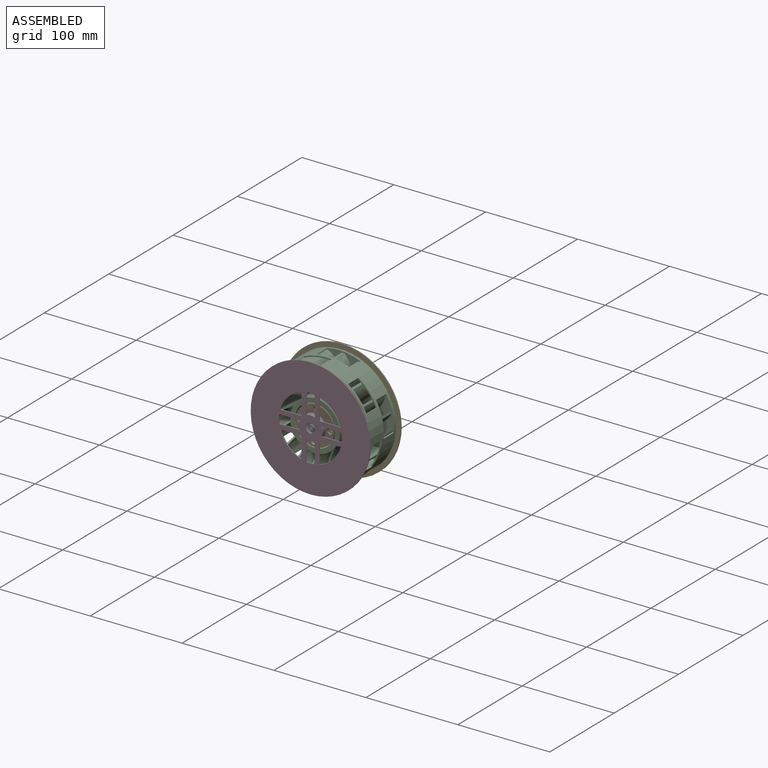
[diagram: assembled view]
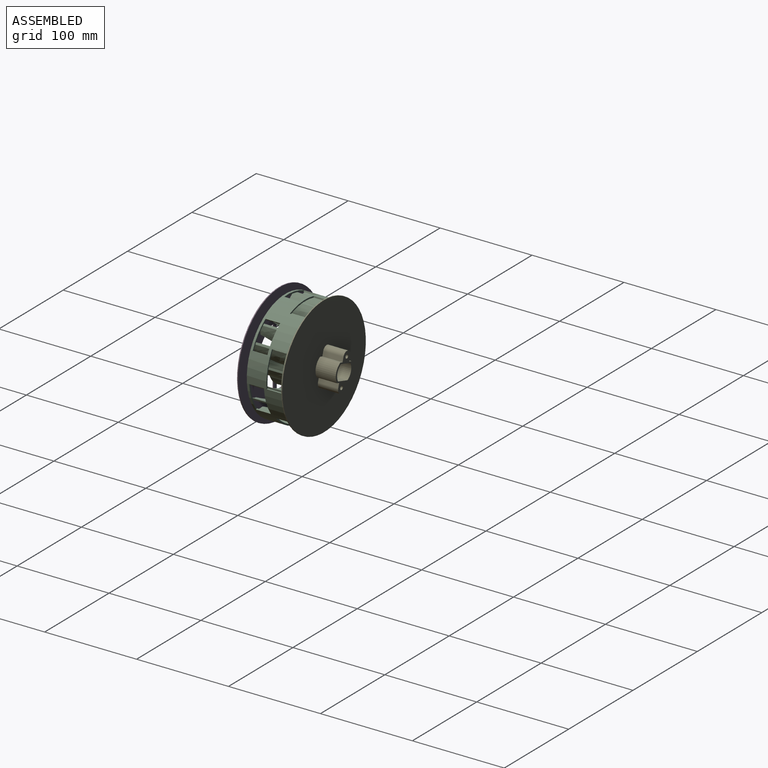
[diagram: assembled view, second angle]
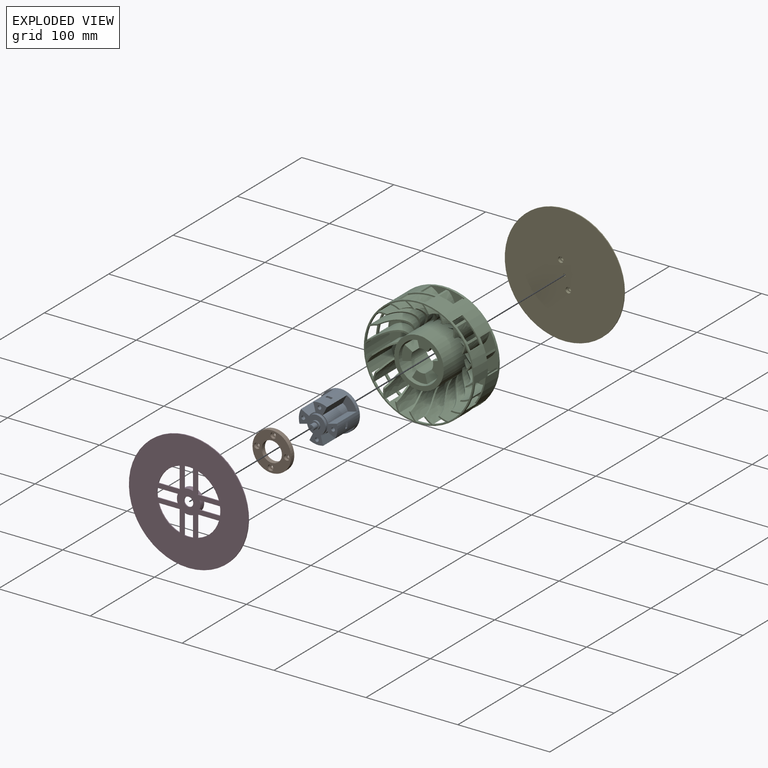
[diagram: exploded view]
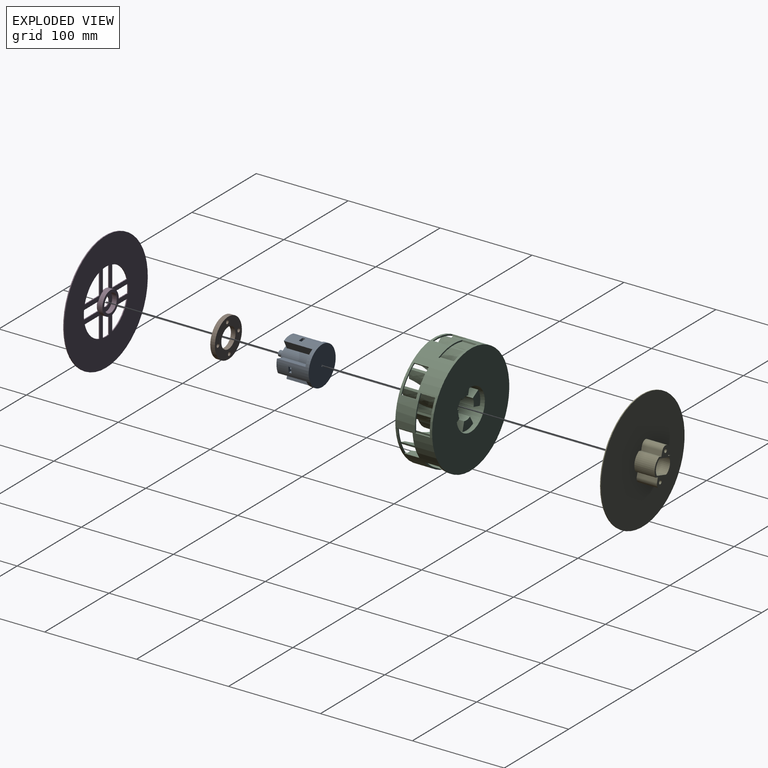
[diagram: exploded view, second angle]
ASSEMBLY  parts=5 mates=4
PART A: 62 faces, bbox 42x46x42 mm
  f0: cylinder r=2mm len=12mm, axis (0,-1,0), area 150.8mm2, adj f1,f7
  f1: plane 8.21x6mm, normal (0,-1,0), area 31.1mm2, adj f0,f3,f4,f5,f6,f27
  f2: plane 8.21x6mm, normal (0,1,0), area 31.1mm2, adj f3,f4,f5,f6,f8,f27
  f3: plane 6.26x3mm, normal (0,0,1), area 18.8mm2, adj f1,f2,f4,f27
  f4: plane 3x3mm, normal (-0.87,0,0.5), area 10.4mm2, adj f1,f2,f3,f5
  f5: plane 3x3mm, normal (-0.87,0,-0.5), area 10.4mm2, adj f1,f2,f4,f6
  f6: plane 6.26x3mm, normal (0,0,-1), area 18.8mm2, adj f1,f2,f5,f27
  f7: plane 4x4mm, normal (0,-1,0), area 12.6mm2, adj f0
  f8: cylinder r=2mm len=13mm, axis (0,-1,0), area 163.4mm2, adj f2,f40
  f9: cylinder r=2mm len=12mm, axis (0,-1,0), area 150.8mm2, adj f10,f16
  f10: plane 8.21x6mm, normal (0,-1,0), area 31.1mm2, adj f9,f12,f13,f14,f15,f27
  f11: plane 8.21x6mm, normal (0,1,0), area 31.1mm2, adj f12,f13,f14,f15,f17,f27
  f12: plane 6.26x3mm, normal (-1,0,0), area 18.8mm2, adj f10,f11,f13,f27
  f13: plane 3x3mm, normal (-0.5,0,-0.87), area 10.4mm2, adj f10,f11,f12,f14
  f14: plane 3x3mm, normal (0.5,0,-0.87), area 10.4mm2, adj f10,f11,f13,f15
  f15: plane 6.26x3mm, normal (1,0,0), area 18.8mm2, adj f10,f11,f14,f27
  f16: plane 4x4mm, normal (0,-1,0), area 12.6mm2, adj f9
  f17: cylinder r=2mm len=13mm, axis (0,-1,0), area 163.4mm2, adj f11,f40
  f18: cylinder r=2mm len=12mm, axis (0,-1,0), area 150.8mm2, adj f19,f25
  f19: plane 8.21x6mm, normal (0,-1,0), area 31.1mm2, adj f18,f21,f22,f23,f24,f27
  f20: plane 8.21x6mm, normal (0,1,0), area 31.1mm2, adj f21,f22,f23,f24,f26,f27
  f21: plane 6.26x3mm, normal (0,0,-1), area 18.8mm2, adj f19,f20,f22,f27
  f22: plane 3x3mm, normal (0.87,0,-0.5), area 10.4mm2, adj f19,f20,f21,f23
  f23: plane 3x3mm, normal (0.87,0,0.5), area 10.4mm2, adj f19,f20,f22,f24
  f24: plane 6.26x3mm, normal (0,0,1), area 18.8mm2, adj f19,f20,f23,f27
  f25: plane 4x4mm, normal (0,-1,0), area 12.6mm2, adj f18
  f26: cylinder r=2mm len=13mm, axis (0,-1,0), area 163.4mm2, adj f20,f40
  f27: cylinder r=21mm len=42mm, axis (0,-1,0), area 2364.4mm2, adj f1,f2,f3,f6,f10,f11,f12,f15
  f28: cylinder r=11mm len=31mm, axis (0,-1,0), area 285.7mm2, adj f29,f33,f40,f52
  f29: plane 31x9.4mm, normal (0.34,0,-0.94), area 310mm2, adj f27,f28,f40,f52
  f30: plane 31x9.27mm, normal (0.37,0,0.93), area 310mm2, adj f27,f37,f40,f49
  f31: cylinder r=11mm len=31mm, axis (0,-1,0), area 285.7mm2, adj f32,f36,f40,f51
  f32: plane 31x9.4mm, normal (0.94,0,0.34), area 310mm2, adj f27,f31,f40,f51
  f33: plane 31x9.27mm, normal (-0.93,0,0.37), area 310mm2, adj f27,f28,f40,f52
  f34: cylinder r=11mm len=31mm, axis (0,-1,0), area 285.7mm2, adj f35,f38,f40,f50
  f35: plane 31x9.4mm, normal (-0.34,0,0.94), area 310mm2, adj f27,f34,f40,f50
  f36: plane 31x9.27mm, normal (-0.37,0,-0.93), area 310mm2, adj f27,f31,f40,f51
  f37: cylinder r=11mm len=31mm, axis (0,-1,0), area 285.7mm2, adj f30,f39,f40,f49
  f38: plane 31x9.27mm, normal (0.93,0,-0.37), area 310mm2, adj f27,f34,f40,f50
  f39: plane 31x9.4mm, normal (-0.94,0,-0.34), area 310mm2, adj f27,f37,f40,f49
  f40: plane 42x42mm, normal (0,-1,0), area 484.9mm2, adj f8,f17,f26,f27,f28,f29,f30,f31
  f41: cylinder r=10mm len=20mm, axis (0,-1,0), area 188.5mm2, adj f40,f42
  f42: plane 20x20mm, normal (0,-1,0), area 250.5mm2, adj f41,f43
  f43: cylinder r=4.5mm len=9mm, axis (0,-1,0), area 56.5mm2, adj f42,f44
  f44: plane 9x9mm, normal (0,-1,0), area 35.3mm2, adj f43,f45
  f45: cylinder r=3mm len=6mm, axis (0,-1,0), area 113.1mm2, adj f44,f46
  f46: plane 6x6mm, normal (0,-1,0), area 25.1mm2, adj f45,f47
  f47: cylinder r=1mm len=46mm, axis (0,-1,0), area 289mm2, adj f46,f48
  f48: plane 42x42mm, normal (0,1,0), area 1382.3mm2, adj f27,f47
  f49: plane 15.71x15.61mm, normal (0,-1,0), area 134mm2, adj f27,f30,f37,f39
  f50: plane 15.71x15.61mm, normal (0,-1,0), area 134mm2, adj f27,f34,f35,f38
  f51: plane 15.71x15.61mm, normal (0,-1,0), area 134mm2, adj f27,f31,f32,f36
  f52: plane 15.71x15.61mm, normal (0,-1,0), area 134mm2, adj f27,f28,f29,f33
  f53: cylinder r=2mm len=13mm, axis (0,-1,0), area 163.4mm2, adj f40,f55
  f54: plane 8.21x6mm, normal (0,-1,0), area 31.1mm2, adj f27,f56,f57,f58,f59,f61
  f55: plane 8.21x6mm, normal (0,1,0), area 31.1mm2, adj f27,f53,f56,f57,f58,f59
  f56: plane 3x3mm, normal (0.5,0,0.87), area 10.4mm2, adj f54,f55,f57,f59
  f57: plane 3x3mm, normal (-0.5,0,0.87), area 10.4mm2, adj f54,f55,f56,f58
  f58: plane 6.26x3mm, normal (-1,0,0), area 18.8mm2, adj f27,f54,f55,f57
  f59: plane 6.26x3mm, normal (1,0,0), area 18.8mm2, adj f27,f54,f55,f56
  f60: plane 4x4mm, normal (0,-1,0), area 12.6mm2, adj f61
  f61: cylinder r=2mm len=12mm, axis (0,-1,0), area 150.8mm2, adj f54,f60
PART B: 16 faces, bbox 42x5x42 mm
  f0: cylinder r=2mm len=4mm, axis (0,-1,0), area 25.1mm2, adj f2,f10
  f1: cylinder r=3mm len=6mm, axis (0,-1,0), area 56.5mm2, adj f2,f9
  f2: plane 6x6mm, normal (0,-1,0), area 15.7mm2, adj f0,f1
  f3: cylinder r=2mm len=4mm, axis (0,-1,0), area 25.1mm2, adj f5,f10
  f4: cylinder r=3mm len=6mm, axis (0,-1,0), area 56.5mm2, adj f5,f9
  f5: plane 6x6mm, normal (0,-1,0), area 15.7mm2, adj f3,f4
  f6: cylinder r=2mm len=4mm, axis (0,-1,0), area 25.1mm2, adj f8,f10
  f7: cylinder r=3mm len=6mm, axis (0,-1,0), area 56.5mm2, adj f8,f9
  f8: plane 6x6mm, normal (0,-1,0), area 15.7mm2, adj f6,f7
  f9: plane 42x42mm, normal (0,-1,0), area 892.2mm2, adj f1,f4,f7,f11,f12,f13
  f10: plane 42x42mm, normal (0,1,0), area 955mm2, adj f0,f3,f6,f11,f12,f15
  f11: cylinder r=21mm len=42mm, axis (0,-1,0), area 659.7mm2, adj f9,f10
  f12: cylinder r=11mm len=22mm, axis (0,-1,0), area 345.6mm2, adj f9,f10
  f13: cylinder r=3mm len=6mm, axis (0,-1,0), area 56.5mm2, adj f9,f14
  f14: plane 6x6mm, normal (0,-1,0), area 15.7mm2, adj f13,f15
  f15: cylinder r=2mm len=4mm, axis (0,-1,0), area 25.1mm2, adj f10,f14
PART C: 194 faces, bbox 120x40x120 mm
  f0: cylinder r=58.5mm len=15.9mm, axis (0,1,0), area 40.3mm2, adj f73,f81,f124,f126
  f1: cylinder r=58.5mm len=19.5mm, axis (0,1,0), area 314.1mm2, adj f82,f124,f126,f184
  f2: cylinder r=58.5mm len=21.5mm, axis (0,1,0), area 346.4mm2, adj f73,f77,f123,f183
  f3: cylinder r=58.5mm len=38mm, axis (0,1,0), area 419.8mm2, adj f73,f80,f81,f82,f127,f129,f184
  f4: cylinder r=58.5mm len=15.82mm, axis (0,1,0), area 8.1mm2, adj f78,f123,f183,f184
  f5: cylinder r=58.5mm len=21.5mm, axis (0,1,0), area 346.4mm2, adj f59,f73,f130,f132
  f6: cylinder r=58.5mm len=11.53mm, axis (0,1,0), area 8.1mm2, adj f58,f130,f132,f184
  f7: cylinder r=58.5mm len=21.5mm, axis (0,1,0), area 183mm2, adj f36,f38,f39,f59,f73,f133,f135
  f8: cylinder r=58.5mm len=14.19mm, axis (0,1,0), area 8.1mm2, adj f58,f133,f135,f184
  f9: cylinder r=58.5mm len=15.82mm, axis (0,1,0), area 40.3mm2, adj f39,f73,f136,f139
  f10: cylinder r=58.5mm len=19.5mm, axis (0,1,0), area 314.1mm2, adj f38,f136,f139,f184
  f11: cylinder r=58.5mm len=38mm, axis (0,1,0), area 612.2mm2, adj f73,f140,f142,f184
  f12: cylinder r=58.5mm len=21.5mm, axis (0,1,0), area 281mm2, adj f40,f42,f43,f63,f73,f143,f145
  f13: cylinder r=58.5mm len=14.42mm, axis (0,1,0), area 8.1mm2, adj f62,f143,f145,f184
  f14: cylinder r=58.5mm len=11.53mm, axis (0,1,0), area 40.3mm2, adj f43,f73,f146,f148
  f15: cylinder r=58.5mm len=11.53mm, axis (0,1,0), area 48.3mm2, adj f42,f63,f146,f148
  f16: cylinder r=58.5mm len=11.53mm, axis (0,1,0), area 8.1mm2, adj f62,f146,f148,f184
  f17: cylinder r=58.5mm len=38mm, axis (0,1,0), area 517.8mm2, adj f41,f42,f43,f73,f149,f151,f184
  f18: cylinder r=58.5mm len=38mm, axis (0,1,0), area 612.2mm2, adj f73,f152,f155,f184
  f19: cylinder r=58.5mm len=15.9mm, axis (0,1,0), area 40.3mm2, adj f47,f73,f156,f158
  f20: cylinder r=58.5mm len=15.9mm, axis (0,1,0), area 48.3mm2, adj f46,f67,f156,f158
  f21: cylinder r=58.5mm len=15.9mm, axis (0,1,0), area 8.1mm2, adj f66,f156,f158,f184
  f22: cylinder r=58.5mm len=21.5mm, axis (0,1,0), area 153.9mm2, adj f45,f46,f47,f67,f73,f159,f161
  f23: cylinder r=58.5mm len=14.42mm, axis (0,1,0), area 8.1mm2, adj f66,f159,f161,f184
  f24: cylinder r=58.5mm len=38mm, axis (0,1,0), area 612.2mm2, adj f73,f162,f164,f184
  f25: cylinder r=58.5mm len=38mm, axis (0,1,0), area 448.8mm2, adj f48,f50,f51,f73,f165,f167,f184
  f26: cylinder r=58.5mm len=15.82mm, axis (0,1,0), area 40.3mm2, adj f51,f73,f168,f171
  f27: cylinder r=58.5mm len=15.82mm, axis (0,1,0), area 48.3mm2, adj f50,f71,f168,f171
  f28: cylinder r=58.5mm len=15.82mm, axis (0,1,0), area 8.1mm2, adj f70,f168,f171,f184
  f29: cylinder r=58.5mm len=21.5mm, axis (0,1,0), area 346.4mm2, adj f71,f73,f172,f174
  f30: cylinder r=58.5mm len=15.9mm, axis (0,1,0), area 8.1mm2, adj f70,f172,f174,f184
  f31: cylinder r=58.5mm len=38mm, axis (0,1,0), area 546.8mm2, adj f52,f54,f55,f73,f175,f177,f184
  f32: cylinder r=58.5mm len=11.53mm, axis (0,1,0), area 40.3mm2, adj f55,f73,f178,f180
  f33: cylinder r=58.5mm len=19.5mm, axis (0,1,0), area 314.1mm2, adj f54,f178,f180,f184
  f34: cylinder r=58.5mm len=21.5mm, axis (0,1,0), area 252mm2, adj f53,f54,f55,f73,f77,f181,f182
  f35: cylinder r=58.5mm len=14.19mm, axis (0,1,0), area 8.1mm2, adj f78,f181,f182,f184
  f36: plane 16x1.3mm, normal (0.5,0,-0.87), area 24mm2, adj f7,f38,f39,f72
  f37: plane 16x1.5mm, normal (0,0,1), area 24mm2, adj f38,f39,f72,f138
  f38: plane 30x9.34mm, normal (0,-1,0), area 46.5mm2, adj f7,f10,f36,f37,f72,f85,f138
  f39: plane 30x9.34mm, normal (0,1,0), area 46.5mm2, adj f7,f9,f36,f37,f72,f85,f138
  f40: plane 16x1.3mm, normal (-0.5,0,-0.87), area 24mm2, adj f12,f42,f43,f72
  f41: plane 16x1.3mm, normal (0.87,0,0.5), area 24mm2, adj f17,f42,f43,f72
  f42: plane 22.71x22.71mm, normal (0,-1,0), area 46.5mm2, adj f12,f15,f17,f40,f41,f72,f88,f90
  f43: plane 22.71x22.71mm, normal (0,1,0), area 46.5mm2, adj f12,f14,f17,f40,f41,f72,f88,f90
  f44: plane 16x1.5mm, normal (-1,0,0), area 24mm2, adj f46,f47,f72,f154
  f45: plane 16x1.3mm, normal (0.87,0,-0.5), area 24mm2, adj f22,f46,f47,f72
  f46: plane 30x9.34mm, normal (0,-1,0), area 46.5mm2, adj f20,f22,f44,f45,f72,f93,f154
  f47: plane 30x9.34mm, normal (0,1,0), area 46.5mm2, adj f19,f22,f44,f45,f72,f93,f154
  f48: plane 16x1.3mm, normal (-0.5,0,0.87), area 24mm2, adj f25,f50,f51,f72
  f49: plane 16x1.5mm, normal (0,0,-1), area 24mm2, adj f50,f51,f72,f170
  f50: plane 30x9.34mm, normal (0,-1,0), area 46.5mm2, adj f25,f27,f48,f49,f72,f96,f170
  f51: plane 30x9.34mm, normal (0,1,0), area 46.5mm2, adj f25,f26,f48,f49,f72,f96,f170
  f52: plane 16x1.3mm, normal (0.5,0,0.87), area 24mm2, adj f31,f54,f55,f72
  f53: plane 16x1.3mm, normal (-0.87,0,-0.5), area 24mm2, adj f34,f54,f55,f72
  f54: plane 22.71x22.71mm, normal (0,-1,0), area 46.5mm2, adj f31,f33,f34,f52,f53,f72,f100,f101
  f55: plane 22.71x22.71mm, normal (0,1,0), area 46.5mm2, adj f31,f32,f34,f52,f53,f72,f100,f101
  f56: plane 16x1.21mm, normal (0.81,0,-0.59), area 24mm2, adj f58,f59,f72,f83
  f57: plane 16x1.43mm, normal (-0.31,0,0.95), area 24mm2, adj f58,f59,f72,f86
  f58: plane 30.46x22.68mm, normal (0,-1,0), area 55.8mm2, adj f6,f8,f56,f57,f72,f83,f84,f86
  f59: plane 30.46x22.68mm, normal (0,1,0), area 55.8mm2, adj f5,f7,f56,f57,f72,f83,f84,f86
  f60: plane 16x1.43mm, normal (-0.31,0,-0.95), area 24mm2, adj f62,f63,f72,f87
  f61: plane 16x1.21mm, normal (0.81,0,0.59), area 24mm2, adj f62,f63,f72,f91
  f62: plane 30.46x22.68mm, normal (0,-1,0), area 55.8mm2, adj f13,f16,f60,f61,f72,f87,f89,f91
  f63: plane 30.46x22.68mm, normal (0,1,0), area 55.8mm2, adj f12,f15,f60,f61,f72,f87,f89,f91
  f64: plane 16x1.5mm, normal (-1,0,0), area 24mm2, adj f66,f67,f72,f92
  f65: plane 16x1.21mm, normal (0.81,0,-0.59), area 24mm2, adj f66,f67,f72,f95
  f66: plane 35.27x12.67mm, normal (0,-1,0), area 55.8mm2, adj f21,f23,f64,f65,f72,f92,f94,f95
  f67: plane 35.27x12.67mm, normal (0,1,0), area 55.8mm2, adj f20,f22,f64,f65,f72,f92,f94,f95
  f68: plane 16x1.43mm, normal (-0.31,0,0.95), area 24mm2, adj f70,f71,f72,f97
  f69: plane 16x1.43mm, normal (-0.31,0,-0.95), area 24mm2, adj f70,f71,f72,f99
  f70: plane 37.08x4.36mm, normal (0,-1,0), area 55.8mm2, adj f28,f30,f68,f69,f72,f97,f98,f99
  f71: plane 37.08x4.36mm, normal (0,1,0), area 55.8mm2, adj f27,f29,f68,f69,f72,f97,f98,f99
  f72: cylinder r=60mm len=120mm, axis (0,1,0), area 9047.8mm2, adj f36,f37,f38,f39,f40,f41,f42,f43
  f73: plane 120x120mm, normal (0,-1,0), area 857.2mm2, adj f0,f2,f3,f5,f7,f9,f11,f12
  f74: plane 120x120mm, normal (0,1,0), area 9789.2mm2, adj f72,f186
  f75: plane 16x1.21mm, normal (0.81,0,0.59), area 24mm2, adj f72,f77,f78,f102
  f76: plane 16x1.5mm, normal (-1,0,0), area 24mm2, adj f72,f77,f78,f104
  f77: plane 35.27x12.67mm, normal (0,1,0), area 55.8mm2, adj f2,f34,f72,f75,f76,f102,f103,f104
  f78: plane 35.27x12.67mm, normal (0,-1,0), area 55.8mm2, adj f4,f35,f72,f75,f76,f102,f103,f104
  f79: plane 16x1.5mm, normal (1,0,0), area 24mm2, adj f72,f81,f82,f122
  f80: plane 16x1.3mm, normal (-0.87,0,0.5), area 24mm2, adj f3,f72,f81,f82
  f81: plane 30x9.34mm, normal (0,1,0), area 46.5mm2, adj f0,f3,f72,f79,f80,f105,f122
  f82: plane 30x9.34mm, normal (0,-1,0), area 46.5mm2, adj f1,f3,f72,f79,f80,f105,f122
  f83: cylinder r=58.5mm len=16mm, axis (0,1,0), area 3.6mm2, adj f56,f58,f59,f130
  f84: cylinder r=58.5mm len=16mm, axis (0,1,0), area 36.3mm2, adj f58,f59,f132,f133
  f85: cylinder r=58.5mm len=16mm, axis (0,1,0), area 36.3mm2, adj f38,f39,f135,f136
  f86: cylinder r=58.5mm len=16mm, axis (0,1,0), area 32.7mm2, adj f57,f58,f59,f135
  f87: cylinder r=58.5mm len=16mm, axis (0,1,0), area 3.6mm2, adj f60,f62,f63,f143
  f88: cylinder r=58.5mm len=16mm, axis (0,1,0), area 36.3mm2, adj f42,f43,f145,f146
  f89: cylinder r=58.5mm len=16mm, axis (0,1,0), area 36.3mm2, adj f62,f63,f145,f146
  f90: cylinder r=58.5mm len=16mm, axis (0,1,0), area 36.3mm2, adj f42,f43,f148,f149
  f91: cylinder r=58.5mm len=16mm, axis (0,1,0), area 32.7mm2, adj f61,f62,f63,f148
  f92: cylinder r=58.5mm len=16mm, axis (0,1,0), area 3.6mm2, adj f64,f66,f67,f156
  f93: cylinder r=58.5mm len=16mm, axis (0,1,0), area 36.3mm2, adj f46,f47,f158,f159
  f94: cylinder r=58.5mm len=16mm, axis (0,1,0), area 36.3mm2, adj f66,f67,f158,f159
  f95: cylinder r=58.5mm len=16mm, axis (0,1,0), area 32.7mm2, adj f65,f66,f67,f161
  f96: cylinder r=58.5mm len=16mm, axis (0,1,0), area 36.3mm2, adj f50,f51,f167,f168
  f97: cylinder r=58.5mm len=16mm, axis (0,1,0), area 3.6mm2, adj f68,f70,f71,f168
  f98: cylinder r=58.5mm len=16mm, axis (0,1,0), area 36.3mm2, adj f70,f71,f171,f172
  f99: cylinder r=58.5mm len=16mm, axis (0,1,0), area 32.7mm2, adj f69,f70,f71,f174
  f100: cylinder r=58.5mm len=16mm, axis (0,1,0), area 36.3mm2, adj f54,f55,f177,f178
  f101: cylinder r=58.5mm len=16mm, axis (0,1,0), area 36.3mm2, adj f54,f55,f180,f181
  f102: cylinder r=58.5mm len=16mm, axis (0,1,0), area 3.6mm2, adj f75,f77,f78,f181
  f103: cylinder r=58.5mm len=16mm, axis (0,1,0), area 36.3mm2, adj f77,f78,f182,f183
  f104: cylinder r=58.5mm len=16mm, axis (0,1,0), area 32.7mm2, adj f76,f77,f78,f123
  f105: cylinder r=58.5mm len=16mm, axis (0,1,0), area 36.3mm2, adj f81,f82,f126,f127
  f106: cylinder r=12mm len=30mm, axis (0,1,0), area 282.7mm2, adj f107,f108,f109,f110
  f107: plane 30x9.06mm, normal (0.42,0,0.91), area 300mm2, adj f106,f109,f110,f186
  f108: plane 30x9.4mm, normal (0.34,0,-0.94), area 300mm2, adj f106,f109,f110,f186
  f109: plane 16.82x11.12mm, normal (0,1,0), area 133.5mm2, adj f106,f107,f108,f186
  f110: plane 16.82x11.12mm, normal (0,-1,0), area 133.5mm2, adj f106,f107,f108,f186
  f111: cylinder r=12mm len=30mm, axis (0,1,0), area 282.7mm2, adj f112,f113,f114,f115
  f112: plane 30x9.06mm, normal (-0.91,0,0.42), area 300mm2, adj f111,f114,f115,f186
  f113: plane 30x9.4mm, normal (0.94,0,0.34), area 300mm2, adj f111,f114,f115,f186
  f114: plane 16.82x11.12mm, normal (0,1,0), area 133.5mm2, adj f111,f112,f113,f186
  f115: plane 16.82x11.12mm, normal (0,-1,0), area 133.5mm2, adj f111,f112,f113,f186
  f116: cylinder r=12mm len=30mm, axis (0,1,0), area 282.7mm2, adj f117,f118,f119,f120
  f117: plane 30x9.06mm, normal (-0.42,0,-0.91), area 300mm2, adj f116,f119,f120,f186
  f118: plane 30x9.4mm, normal (-0.34,0,0.94), area 300mm2, adj f116,f119,f120,f186
  f119: plane 16.82x11.12mm, normal (0,1,0), area 133.5mm2, adj f116,f117,f118,f186
  f120: plane 16.82x11.12mm, normal (0,-1,0), area 133.5mm2, adj f116,f117,f118,f186
  f121: cylinder r=39.65mm len=31mm, axis (-1,0,-0.03), area 73mm2, adj f73,f123,f124
  f122: cylinder r=58.5mm len=16mm, axis (0,1,0), area 3.6mm2, adj f79,f81,f82,f124
  f123: extruded ~38x30.98mm, area 823.3mm2, adj f2,f4,f73,f104,f121,f124,f184
  f124: extruded ~38x31.02mm, area 821.7mm2, adj f0,f1,f73,f121,f122,f123,f184
  f125: cylinder r=39.65mm len=31mm, axis (-0.96,0,0.28), area 73mm2, adj f73,f126,f127
  f126: extruded ~38x29.8mm, area 823.3mm2, adj f0,f1,f73,f105,f125,f127,f184
  f127: extruded ~38x29.19mm, area 821.7mm2, adj f3,f73,f105,f125,f126,f184
  f128: cylinder r=39.65mm len=31mm, axis (-0.83,0,0.56), area 73mm2, adj f73,f129,f130
  f129: extruded ~38x25.88mm, area 823.3mm2, adj f3,f73,f128,f130,f184
  f130: extruded ~38x25.69mm, area 821.7mm2, adj f5,f6,f73,f83,f128,f129,f184
  f131: cylinder r=39.65mm len=31mm, axis (-0.62,0,0.79), area 73mm2, adj f73,f132,f133
  f132: extruded ~38x24.43mm, area 823.3mm2, adj f5,f6,f73,f84,f131,f133,f184
  f133: extruded ~38x25.79mm, area 821.7mm2, adj f7,f8,f73,f84,f131,f132,f184
  f134: cylinder r=39.65mm len=31mm, axis (-0.34,0,0.94), area 73mm2, adj f73,f135,f136
  f135: extruded ~38x29.13mm, area 823.3mm2, adj f7,f8,f73,f85,f86,f134,f136,f184
  f136: extruded ~38x29.87mm, area 821.7mm2, adj f9,f10,f73,f85,f134,f135,f184
  f137: cylinder r=39.65mm len=31mm, axis (-0.03,0,1), area 73mm2, adj f73,f139,f140
  f138: cylinder r=58.5mm len=16mm, axis (0,1,0), area 32.7mm2, adj f37,f38,f39,f139
  f139: extruded ~38x30.98mm, area 823.3mm2, adj f9,f10,f73,f137,f138,f140,f184
  f140: extruded ~38x31.02mm, area 821.7mm2, adj f11,f73,f137,f139,f184
  f141: cylinder r=39.65mm len=31mm, axis (0.28,0,0.96), area 73mm2, adj f73,f142,f143
  f142: extruded ~38x29.8mm, area 823.3mm2, adj f11,f73,f141,f143,f184
  f143: extruded ~38x29.19mm, area 821.7mm2, adj f12,f13,f73,f87,f141,f142,f184
  f144: cylinder r=39.65mm len=31mm, axis (0.56,0,0.83), area 73mm2, adj f73,f145,f146
  f145: extruded ~38x25.88mm, area 823.3mm2, adj f12,f13,f73,f88,f89,f144,f146,f184
  f146: extruded ~38x25.69mm, area 821.7mm2, adj f14,f15,f16,f73,f88,f89,f144,f145
  f147: cylinder r=39.65mm len=31mm, axis (0.79,0,0.62), area 73mm2, adj f73,f148,f149
  f148: extruded ~38x24.43mm, area 823.3mm2, adj f14,f15,f16,f73,f90,f91,f147,f149
  f149: extruded ~38x25.79mm, area 821.7mm2, adj f17,f73,f90,f147,f148,f184
  f150: cylinder r=39.65mm len=31mm, axis (0.94,0,0.34), area 73mm2, adj f73,f151,f152
  f151: extruded ~38x29.13mm, area 823.3mm2, adj f17,f73,f150,f152,f184
  f152: extruded ~38x29.87mm, area 821.7mm2, adj f18,f73,f150,f151,f184
  f153: cylinder r=39.65mm len=31mm, axis (1,0,0.03), area 73mm2, adj f73,f155,f156
  f154: cylinder r=58.5mm len=16mm, axis (0,1,0), area 3.6mm2, adj f44,f46,f47,f156
  f155: extruded ~38x30.98mm, area 823.3mm2, adj f18,f73,f153,f156,f184
  f156: extruded ~38x31.02mm, area 821.7mm2, adj f19,f20,f21,f73,f92,f153,f154,f155
  f157: cylinder r=39.65mm len=31mm, axis (0.96,0,-0.28), area 73mm2, adj f73,f158,f159
  f158: extruded ~38x29.8mm, area 823.3mm2, adj f19,f20,f21,f73,f93,f94,f157,f159
  f159: extruded ~38x29.19mm, area 821.7mm2, adj f22,f23,f73,f93,f94,f157,f158,f184
  f160: cylinder r=39.65mm len=31mm, axis (0.83,0,-0.56), area 73mm2, adj f73,f161,f162
  f161: extruded ~38x25.88mm, area 823.3mm2, adj f22,f23,f73,f95,f160,f162,f184
  f162: extruded ~38x25.69mm, area 821.7mm2, adj f24,f73,f160,f161,f184
  f163: cylinder r=39.65mm len=31mm, axis (0.62,0,-0.79), area 73mm2, adj f73,f164,f165
  f164: extruded ~38x24.43mm, area 823.3mm2, adj f24,f73,f163,f165,f184
  f165: extruded ~38x25.79mm, area 821.7mm2, adj f25,f73,f163,f164,f184
  f166: cylinder r=39.65mm len=31mm, axis (0.34,0,-0.94), area 73mm2, adj f73,f167,f168
  f167: extruded ~38x29.13mm, area 823.3mm2, adj f25,f73,f96,f166,f168,f184
  f168: extruded ~38x29.87mm, area 821.7mm2, adj f26,f27,f28,f73,f96,f97,f166,f167
  f169: cylinder r=39.65mm len=31mm, axis (0.03,0,-1), area 73mm2, adj f73,f171,f172
  f170: cylinder r=58.5mm len=16mm, axis (0,1,0), area 32.7mm2, adj f49,f50,f51,f171
  f171: extruded ~38x30.98mm, area 823.3mm2, adj f26,f27,f28,f73,f98,f169,f170,f172
  f172: extruded ~38x31.02mm, area 821.7mm2, adj f29,f30,f73,f98,f169,f171,f184
  f173: cylinder r=39.65mm len=31mm, axis (-0.28,0,-0.96), area 73mm2, adj f73,f174,f175
  f174: extruded ~38x29.8mm, area 823.3mm2, adj f29,f30,f73,f99,f173,f175,f184
  f175: extruded ~38x29.19mm, area 821.7mm2, adj f31,f73,f173,f174,f184
  f176: cylinder r=39.65mm len=31mm, axis (-0.56,0,-0.83), area 73mm2, adj f73,f177,f178
  f177: extruded ~38x25.88mm, area 823.3mm2, adj f31,f73,f100,f176,f178,f184
  f178: extruded ~38x25.69mm, area 821.7mm2, adj f32,f33,f73,f100,f176,f177,f184
  f179: cylinder r=39.65mm len=31mm, axis (-0.79,0,-0.62), area 73mm2, adj f73,f180,f181
  f180: extruded ~38x24.43mm, area 823.3mm2, adj f32,f33,f73,f101,f179,f181,f184
  f181: extruded ~38x25.79mm, area 821.7mm2, adj f34,f35,f73,f101,f102,f179,f180,f184
  f182: extruded ~38x29.13mm, area 823.3mm2, adj f34,f35,f73,f103,f183,f184,f185
  f183: extruded ~38x29.87mm, area 821.7mm2, adj f2,f4,f73,f103,f182,f184,f185
  f184: plane 117x117mm, normal (0,-1,0), area 7300.4mm2, adj f1,f3,f4,f6,f8,f10,f11,f13
  f185: cylinder r=39.65mm len=31mm, axis (-0.94,0,-0.34), area 73mm2, adj f73,f182,f183
  f186: cylinder r=22mm len=44mm, axis (0,1,0), area 3455.8mm2, adj f74,f107,f108,f109,f110,f112,f113,f114
  f187: cylinder r=27mm len=54mm, axis (0,1,0), area 6446.5mm2, adj f184,f188
  f188: plane 54x54mm, normal (0,-1,0), area 769.7mm2, adj f186,f187
  f189: cylinder r=12mm len=30mm, axis (0,1,0), area 282.7mm2, adj f190,f191,f192,f193
  f190: plane 30x9.06mm, normal (0.91,0,-0.42), area 300mm2, adj f186,f189,f192,f193
  f191: plane 30x9.4mm, normal (-0.94,0,-0.34), area 300mm2, adj f186,f189,f192,f193
  f192: plane 16.82x11.12mm, normal (0,-1,0), area 133.5mm2, adj f186,f189,f190,f191
  f193: plane 16.82x11.12mm, normal (0,1,0), area 133.5mm2, adj f186,f189,f190,f191
PART D: 32 faces, bbox 130x6x130 mm
  f0: plane 19.5x19.5mm, normal (0,1,0), area 220.1mm2, adj f27,f30
  f1: plane 23.26x1mm, normal (1,0,0), area 23.3mm2, adj f2,f19,f28,f29
  f2: cylinder r=34.42mm len=23.26mm, axis (0,1,0), area 34.3mm2, adj f1,f19,f28,f29
  f3: cylinder r=34.42mm len=9.5mm, axis (0,1,0), area 9.5mm2, adj f4,f20,f28,f29
  f4: plane 22.26x1mm, normal (-1,0,0), area 22.3mm2, adj f3,f17,f28,f29
  f5: cylinder r=34.42mm len=23.26mm, axis (0,1,0), area 34.3mm2, adj f6,f21,f28,f29
  f6: plane 23.26x1mm, normal (-1,0,0), area 23.3mm2, adj f5,f21,f28,f29
  f7: cylinder r=34.42mm len=9.5mm, axis (0,1,0), area 9.5mm2, adj f8,f22,f28,f29
  f8: plane 22.26x1mm, normal (0,0,-1), area 22.3mm2, adj f7,f17,f28,f29
  f9: cylinder r=34.42mm len=23.26mm, axis (0,1,0), area 34.3mm2, adj f10,f23,f28,f29
  f10: plane 23.26x1mm, normal (0,0,-1), area 23.3mm2, adj f9,f23,f28,f29
  f11: cylinder r=34.42mm len=9.5mm, axis (0,1,0), area 9.5mm2, adj f12,f24,f28,f29
  f12: plane 22.26x1mm, normal (1,0,0), area 22.3mm2, adj f11,f17,f28,f29
  f13: cylinder r=34.42mm len=23.26mm, axis (0,1,0), area 34.3mm2, adj f14,f25,f28,f29
  f14: plane 23.26x1mm, normal (1,0,0), area 23.3mm2, adj f13,f25,f28,f29
  f15: cylinder r=34.42mm len=9.5mm, axis (0,1,0), area 9.5mm2, adj f16,f26,f28,f29
  f16: plane 22.26x1mm, normal (0,0,1), area 22.3mm2, adj f15,f17,f28,f29
  f17: cylinder r=12.75mm len=25.5mm, axis (0,1,0), area 439.5mm2, adj f4,f8,f12,f16,f20,f22,f24,f26
  f18: cylinder r=65mm len=130mm, axis (0,1,0), area 408.4mm2, adj f28,f29
  f19: plane 23.26x1mm, normal (0,0,1), area 23.3mm2, adj f1,f2,f28,f29
  f20: plane 22.26x1mm, normal (1,0,0), area 22.3mm2, adj f3,f17,f28,f29
  f21: plane 23.26x1mm, normal (0,0,1), area 23.3mm2, adj f5,f6,f28,f29
  f22: plane 22.26x1mm, normal (0,0,1), area 22.3mm2, adj f7,f17,f28,f29
  f23: plane 23.26x1mm, normal (-1,0,0), area 23.3mm2, adj f9,f10,f28,f29
  f24: plane 22.26x1mm, normal (-1,0,0), area 22.3mm2, adj f11,f17,f28,f29
  f25: plane 23.26x1mm, normal (0,0,-1), area 23.3mm2, adj f13,f14,f28,f29
  f26: plane 22.26x1mm, normal (0,0,-1), area 22.3mm2, adj f15,f17,f28,f29
  f27: cylinder r=5mm len=10mm, axis (0,1,0), area 31.4mm2, adj f0,f28
  f28: plane 130x130mm, normal (0,-1,0), area 10910.4mm2, adj f1,f2,f3,f4,f5,f6,f7,f8
  f29: plane 130x130mm, normal (0,1,0), area 10478.3mm2, adj f1,f2,f3,f4,f5,f6,f7,f8
  f30: cylinder r=9.75mm len=19.5mm, axis (0,-1,0), area 306.3mm2, adj f0,f31
  f31: plane 25.5x25.5mm, normal (0,1,0), area 212.1mm2, adj f17,f30
PART E: 30 faces, bbox 130x23x130 mm
  f0: plane 22x16mm, normal (0,1,0), area 279.4mm2, adj f20,f23,f24,f27,f28
  f1: plane 7x7mm, normal (0,1,0), area 33.6mm2, adj f3,f20
  f2: cylinder r=3mm len=6mm, axis (0,1,0), area 56.5mm2, adj f6,f25
  f3: cylinder r=1.25mm len=2.5mm, axis (0,1,0), area 7.9mm2, adj f1,f6
  f4: cylinder r=65mm len=130mm, axis (0,1,0), area 408.4mm2, adj f6,f7
  f5: cylinder r=3mm len=6mm, axis (0,1,0), area 56.5mm2, adj f6,f21
  f6: plane 130x130mm, normal (0,-1,0), area 13211.8mm2, adj f2,f3,f4,f5
  f7: plane 130x130mm, normal (0,1,0), area 12619.4mm2, adj f4,f8,f9,f10,f11,f12,f13,f14
  f8: plane 22x3.59mm, normal (0,0,-1), area 78.9mm2, adj f7,f9,f19,f22
  f9: plane 22x5mm, normal (-1,0,0), area 110mm2, adj f7,f8,f10,f22
  f10: cylinder r=5.46mm len=22mm, axis (0,-1,0), area 377.7mm2, adj f7,f9,f11,f22
  f11: plane 22x5mm, normal (1,0,0), area 110mm2, adj f7,f10,f12,f22
  f12: plane 22x3.59mm, normal (0,0,-1), area 78.9mm2, adj f7,f11,f13,f22
  f13: cylinder r=13.12mm len=22mm, axis (0,-1,0), area 467.4mm2, adj f7,f12,f14,f22
  f14: plane 22x3.59mm, normal (0,0,1), area 78.9mm2, adj f7,f13,f15,f22
  f15: plane 22x5mm, normal (1,0,0), area 110mm2, adj f7,f14,f16,f22
  f16: cylinder r=5.46mm len=22mm, axis (0,-1,0), area 377.7mm2, adj f7,f15,f17,f22
  f17: plane 22x5mm, normal (-1,0,0), area 110mm2, adj f7,f16,f18,f22
  f18: plane 22x3.59mm, normal (0,0,1), area 78.9mm2, adj f7,f17,f19,f22
  f19: cylinder r=13.12mm len=22mm, axis (0,-1,0), area 467.4mm2, adj f7,f8,f18,f22
  f20: cylinder r=3.5mm len=7mm, axis (0,-1,0), area 44mm2, adj f0,f1
  f21: plane 6x6mm, normal (0,-1,0), area 15.7mm2, adj f5,f29
  f22: plane 39.93x26.24mm, normal (0,1,0), area 310.8mm2, adj f8,f9,f10,f11,f12,f13,f14,f15
  f23: cylinder r=11mm len=20mm, axis (0,-1,0), area 358.3mm2, adj f0,f22,f24,f27
  f24: plane 20x15.1mm, normal (0,0,1), area 302mm2, adj f0,f22,f23,f28
  f25: plane 6x6mm, normal (0,-1,0), area 15.7mm2, adj f2,f26
  f26: cylinder r=2mm len=20mm, axis (0,-1,0), area 251.3mm2, adj f22,f25
  f27: plane 20x15.1mm, normal (0,0,-1), area 302mm2, adj f0,f22,f23,f28
  f28: cylinder r=11mm len=20mm, axis (0,-1,0), area 358.3mm2, adj f0,f22,f24,f27
  f29: cylinder r=2mm len=20mm, axis (0,-1,0), area 251.3mm2, adj f21,f22
PLACE A rot(axis=(0,-1,0),85deg) t=(-82.43,44.18,101.54)mm
PLACE B rot(axis=(0,-1,0),85deg) t=(-82.43,44.18,101.54)mm
PLACE C rot(axis=(0,1,0),95deg) t=(-82.43,64.1,101.54)mm
PLACE D t=(-82.43,18.1,101.54)mm fixed
PLACE E rot(axis=(0,-1,0),16.5deg) t=(-82.43,66.1,101.54)mm fixed
MATE fastened C.f186 <-> A.f27  axis (0,1,0) through (-82.43,64.1,101.54)mm
MATE revolute A.f27 <-> D.f30  axis (0,-1,0) through (-82.43,24.1,101.54)mm
MATE fastened A.f53 <-> B.f13  axis (0,-1,0) through (-98.63,29.1,102.97)mm
MATE revolute A.f27 <-> E.f3  axis (0,1,0) through (-82.43,64.1,101.54)mm
